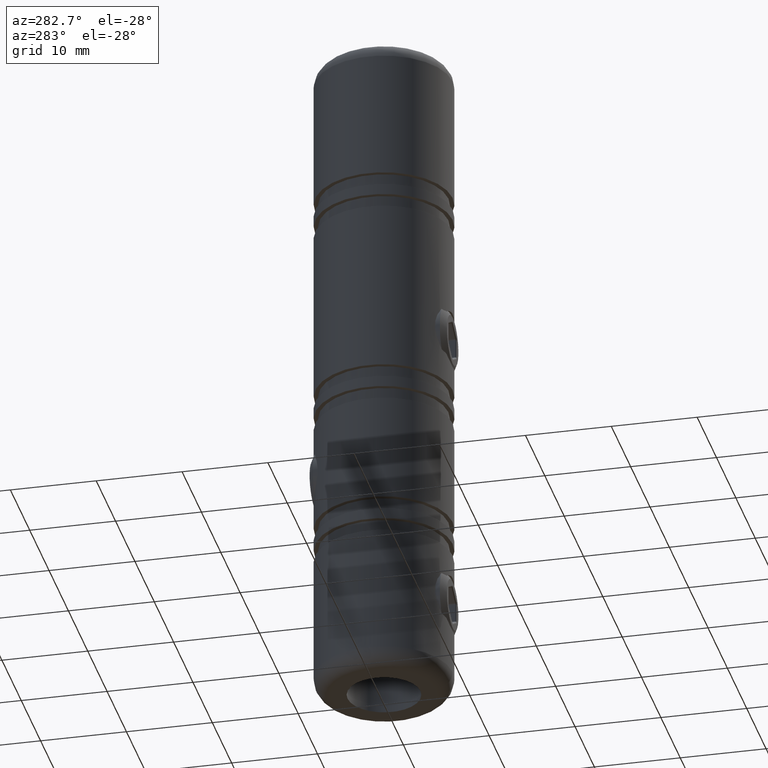
[diagram: clean part render]
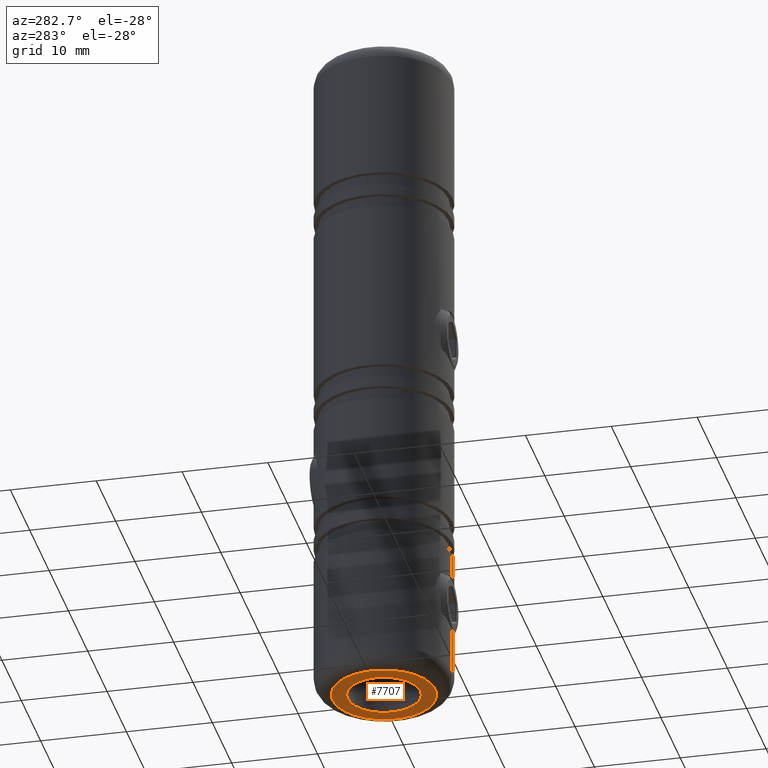
[diagram: same view with one face highlighted and labeled with its STEP entity id]
A machine part, auxiliary view. The second image highlights one B-rep face of the part: STEP entity #7707.
In plain terms, the highlighted planar face has unit normal (0, 0, 1).
Its self-contained STEP definition (entity closure, byte-faithful):
#69 = VERTEX_POINT ( 'NONE', #7083 ) ;
#153 = DIRECTION ( 'NONE',  ( 0.0000000000000000000, 1.000000000000000000, 0.0000000000000000000 ) ) ;
#330 = DIRECTION ( 'NONE',  ( 0.0000000000000000000, 6.123233995736768500E-017, -1.000000000000000000 ) ) ;
#797 = CARTESIAN_POINT ( 'NONE',  ( 0.0000000000000000000, -4.738076339476892700E-015, -40.00000000000000000 ) ) ;
#861 = DIRECTION ( 'NONE',  ( -0.0000000000000000000, 5.922595424346115800E-017, 1.000000000000000000 ) ) ;
#986 = EDGE_LOOP ( 'NONE', ( #12349, #9460 ) ) ;
#1187 = AXIS2_PLACEMENT_3D ( 'NONE', #1483, #330, #153 ) ;
#1483 = CARTESIAN_POINT ( 'NONE',  ( 0.0000000000000000000, -2.369038169738445900E-015, -40.00000000000000000 ) ) ;
#1542 = CARTESIAN_POINT ( 'NONE',  ( 0.0000000000000000000, -2.369038169738445900E-015, -40.00000000000000000 ) ) ;
#1737 = CIRCLE ( 'NONE', #14984, 5.999999999999996400 ) ;
#1832 = CIRCLE ( 'NONE', #1187, 4.250000000000000000 ) ;
#2916 = DIRECTION ( 'NONE',  ( 0.0000000000000000000, 1.000000000000000000, 0.0000000000000000000 ) ) ;
#3085 = CARTESIAN_POINT ( 'NONE',  ( 0.0000000000000000000, -4.738076339476893500E-015, -40.00000000000000000 ) ) ;
#4374 = CARTESIAN_POINT ( 'NONE',  ( 8.572527594031469200E-016, 5.999999999999992000, -40.00000000000000000 ) ) ;
#4994 = FACE_OUTER_BOUND ( 'NONE', #12900, .T. ) ;
#5551 = CARTESIAN_POINT ( 'NONE',  ( 0.0000000000000000000, -4.738076339476893500E-015, -40.00000000000000000 ) ) ;
#5703 = DIRECTION ( 'NONE',  ( 0.0000000000000000000, 6.123233995736768500E-017, -1.000000000000000000 ) ) ;
#6935 = EDGE_CURVE ( 'NONE', #11650, #8006, #1832, .T. ) ;
#7083 = CARTESIAN_POINT ( 'NONE',  ( 0.0000000000000000000, -6.000000000000000900, -40.00000000000000000 ) ) ;
#7250 = AXIS2_PLACEMENT_3D ( 'NONE', #1542, #5703, #2916 ) ;
#7707 = ADVANCED_FACE ( 'NONE', ( #15078, #4994 ), #17417, .F. ) ;
#8006 = VERTEX_POINT ( 'NONE', #11034 ) ;
#8307 = ORIENTED_EDGE ( 'NONE', *, *, #11983, .T. ) ;
#8581 = DIRECTION ( 'NONE',  ( 0.0000000000000000000, -5.922595424346115800E-017, -1.000000000000000000 ) ) ;
#9205 = EDGE_CURVE ( 'NONE', #8006, #11650, #12261, .T. ) ;
#9453 = DIRECTION ( 'NONE',  ( 0.0000000000000000000, -1.000000000000000000, 0.0000000000000000000 ) ) ;
#9460 = ORIENTED_EDGE ( 'NONE', *, *, #6935, .F. ) ;
#9630 = DIRECTION ( 'NONE',  ( 0.0000000000000000000, -5.922595424346115800E-017, -1.000000000000000000 ) ) ;
#10137 = AXIS2_PLACEMENT_3D ( 'NONE', #797, #861, #16086 ) ;
#10417 = ORIENTED_EDGE ( 'NONE', *, *, #17181, .T. ) ;
#11034 = CARTESIAN_POINT ( 'NONE',  ( 0.0000000000000000000, 4.249999999999997300, -40.00000000000000000 ) ) ;
#11650 = VERTEX_POINT ( 'NONE', #13849 ) ;
#11983 = EDGE_CURVE ( 'NONE', #69, #12092, #1737, .T. ) ;
#12092 = VERTEX_POINT ( 'NONE', #4374 ) ;
#12143 = CIRCLE ( 'NONE', #16739, 5.999999999999996400 ) ;
#12261 = CIRCLE ( 'NONE', #7250, 4.250000000000000000 ) ;
#12349 = ORIENTED_EDGE ( 'NONE', *, *, #9205, .F. ) ;
#12900 = EDGE_LOOP ( 'NONE', ( #8307, #10417 ) ) ;
#13849 = CARTESIAN_POINT ( 'NONE',  ( 5.204748896376250700E-016, -4.250000000000002700, -40.00000000000000000 ) ) ;
#14984 = AXIS2_PLACEMENT_3D ( 'NONE', #3085, #8581, #16805 ) ;
#15078 = FACE_BOUND ( 'NONE', #986, .T. ) ;
#16086 = DIRECTION ( 'NONE',  ( 0.0000000000000000000, -1.000000000000000000, 5.922595424346115800E-017 ) ) ;
#16739 = AXIS2_PLACEMENT_3D ( 'NONE', #5551, #9630, #9453 ) ;
#16805 = DIRECTION ( 'NONE',  ( 0.0000000000000000000, -1.000000000000000000, 0.0000000000000000000 ) ) ;
#17181 = EDGE_CURVE ( 'NONE', #12092, #69, #12143, .T. ) ;
#17417 = PLANE ( 'NONE',  #10137 ) ;